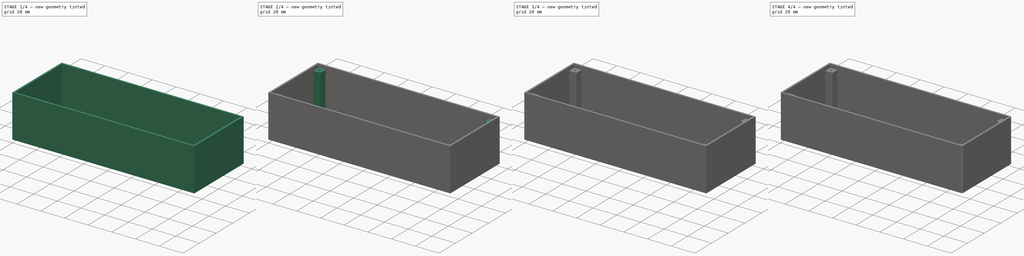
[diagram: build sequence overview — one tinted view per stage of 4, left to right]
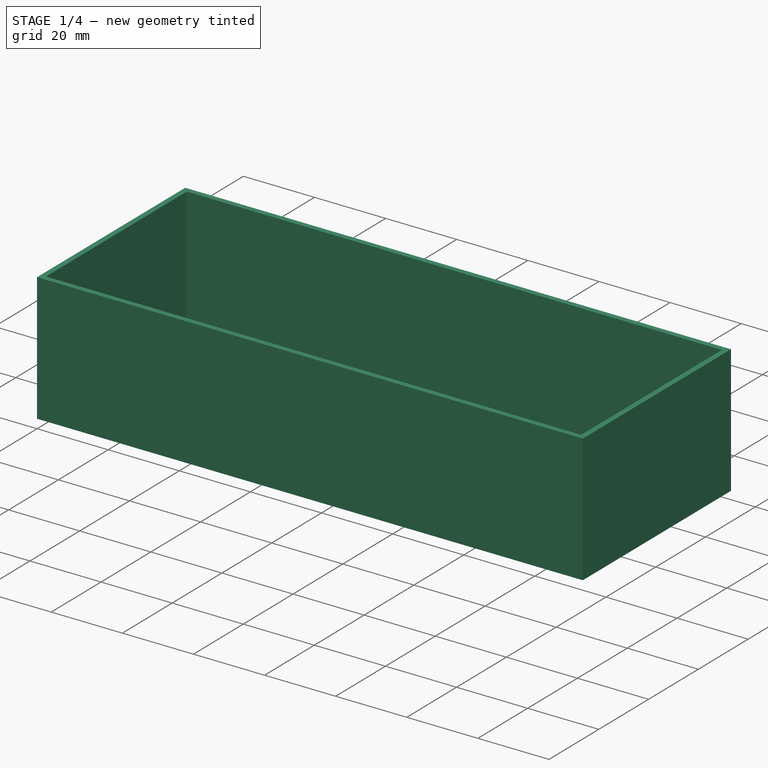
[diagram: stage 1 of 4 — iso view after this stage's code; geometry added in this stage tinted green]
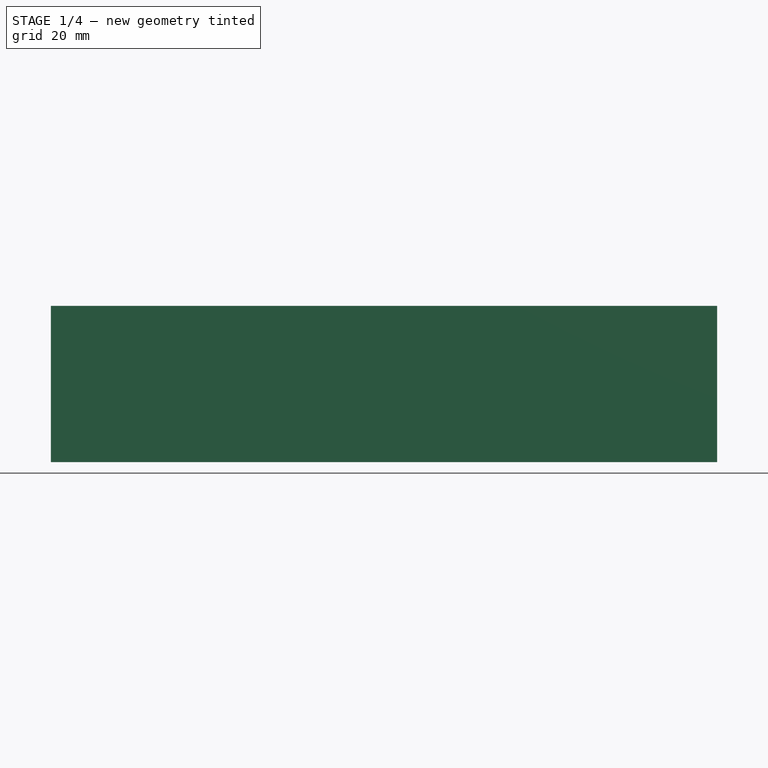
[diagram: stage 1 of 4 — front view after this stage's code; geometry added in this stage tinted green]
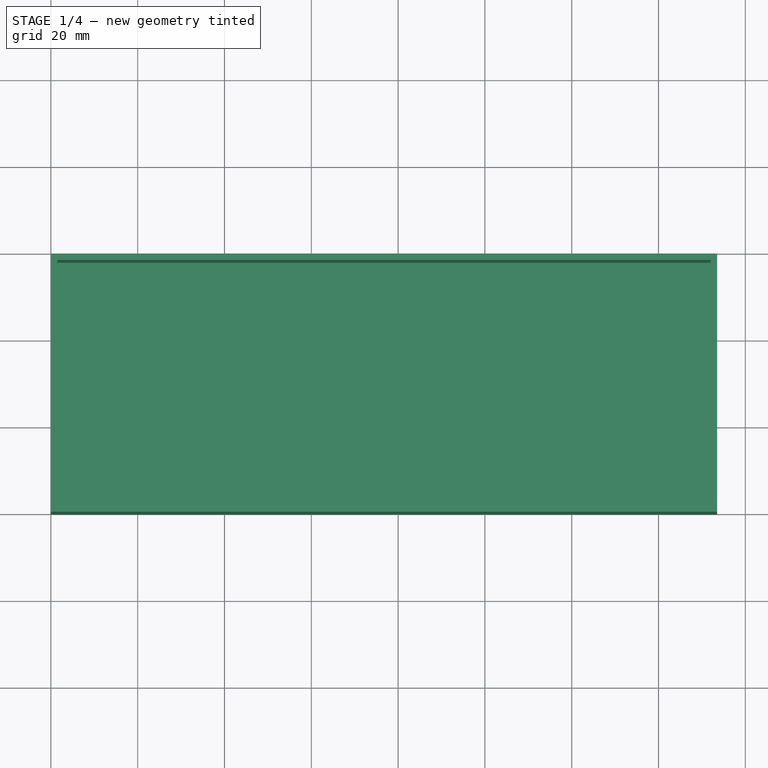
[diagram: stage 1 of 4 — top view after this stage's code; geometry added in this stage tinted green]
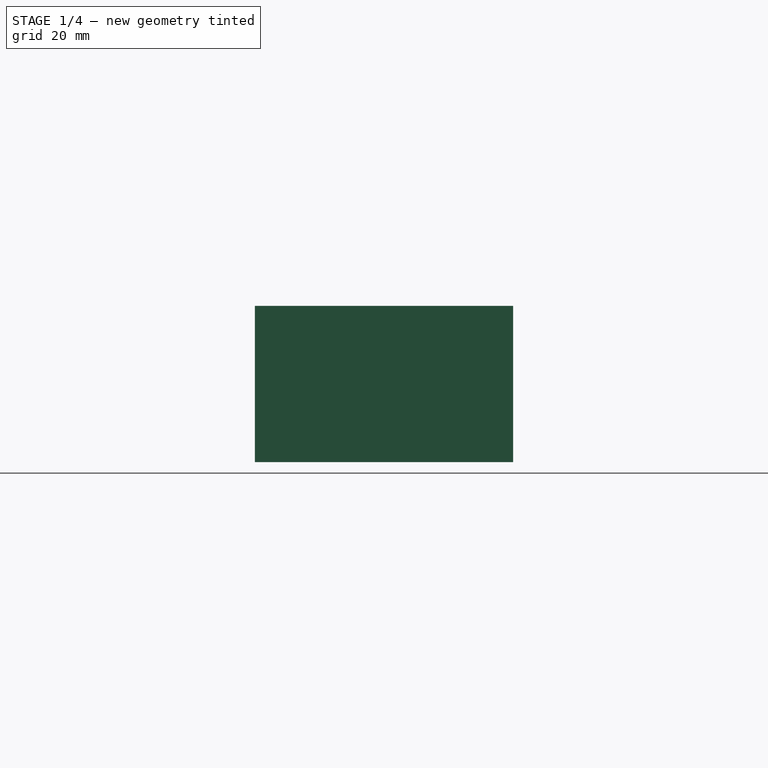
[diagram: stage 1 of 4 — right view after this stage's code; geometry added in this stage tinted green]
FCSTD DOCUMENT  (FreeCAD 0.21R33668 +26 (Git))
Label: Gehaeuse-V02
License: All rights reserved
LicenseURL: https://en.wikipedia.org/wiki/All_rights_reserved
objects: Sketcher::SketchObject×8, PartDesign::Pad×4, PartDesign::Pocket×4, PartDesign::Fillet×1, PartDesign::Body×1
note: 27 computed .brp shape members not serialized (recipe doc carries the construction recipe); baked Part::Feature solids carry a one-line shape summary decoded from their .brp

FEATURE [Sketcher::SketchObject] Sketch
  FullyConstrained = true
  MapMode = 5
  Support = -> [XY_Plane]
  sketch-geometry (4):
    g0: LineSegment StartX=0 StartY=0 StartZ=0 EndX=153.5 EndY=0 EndZ=0
    g1: LineSegment StartX=153.5 StartY=0 StartZ=0 EndX=153.5 EndY=59.5 EndZ=0
    g2: LineSegment StartX=153.5 StartY=59.5 StartZ=0 EndX=0 EndY=59.5 EndZ=0
    g3: LineSegment StartX=0 StartY=59.5 StartZ=0 EndX=0 EndY=0 EndZ=0
  constraints (11):
    c: Coincident(g0,g1)
    c: Coincident(g1,g2)
    c: Coincident(g2,g3)
    c: Coincident(g3,g0)
    c: Horizontal(g0)
    c: Horizontal(g2)
    c: Vertical(g1)
    c: Vertical(g3)
    c: Coincident(g0,g-1)
    c: DistanceX(g2,g2) = 153.5
    c: DistanceY(g3,g3) = 59.5
FEATURE [PartDesign::Pad] Pad
  Direction = (0,0,1)
  Length = 1
  Length2 = 10
  Profile = -> Sketch
  ReferenceAxis = -> Sketch [N_Axis]
  Type = 0
FEATURE [Sketcher::SketchObject] Sketch001
  ExternalGeometry = -> [Pad]
  FullyConstrained = true
  MapMode = 5
  Placement = pos=(0,0,1) rot=(0,0,1;0rad)
  Support = -> [Pad]
  sketch-geometry (8):
    g0: LineSegment StartX=1.5 StartY=58 StartZ=0 EndX=152 EndY=58 EndZ=0
    g1: LineSegment StartX=152 StartY=58 StartZ=0 EndX=152 EndY=1.5 EndZ=0
    g2: LineSegment StartX=152 StartY=1.5 StartZ=0 EndX=1.5 EndY=1.5 EndZ=0
    g3: LineSegment StartX=1.5 StartY=1.5 StartZ=0 EndX=1.5 EndY=58 EndZ=0
    g4: LineSegment StartX=0 StartY=59.5 StartZ=0 EndX=153.5 EndY=59.5 EndZ=0
    g5: LineSegment StartX=153.5 StartY=59.5 StartZ=0 EndX=153.5 EndY=0 EndZ=0
    g6: LineSegment StartX=153.5 StartY=0 StartZ=0 EndX=0 EndY=0 EndZ=0
    g7: LineSegment StartX=0 StartY=0 StartZ=0 EndX=0 EndY=59.5 EndZ=0
  constraints (22):
    c: Coincident(g0,g1)
    c: Coincident(g1,g2)
    c: Coincident(g2,g3)
    c: Coincident(g3,g0)
    c: Horizontal(g0)
    c: Horizontal(g2)
    c: Vertical(g1)
    c: Vertical(g3)
    c: DistanceY(g0,g-3) = 1.5
    c: DistanceX(g-3,g0) = 1.5
    c: DistanceY(g-4,g1) = 1.5
    c: DistanceX(g1,g-4) = 1.5
    c: Coincident(g4,g5)
    c: Coincident(g5,g6)
    c: Coincident(g6,g7)
    c: Coincident(g7,g4)
    c: Horizontal(g4)
    c: Horizontal(g6)
    c: Vertical(g5)
    c: Vertical(g7)
    c: Coincident(g4,g-3)
    c: Coincident(g5,g-4)
FEATURE [PartDesign::Pad] Pad001
  BaseFeature = -> Pad
  Direction = (0,0,1)
  Length = 35
  Length2 = 10
  Profile = -> Sketch001
  ReferenceAxis = -> Sketch001 [N_Axis]
  Type = 0
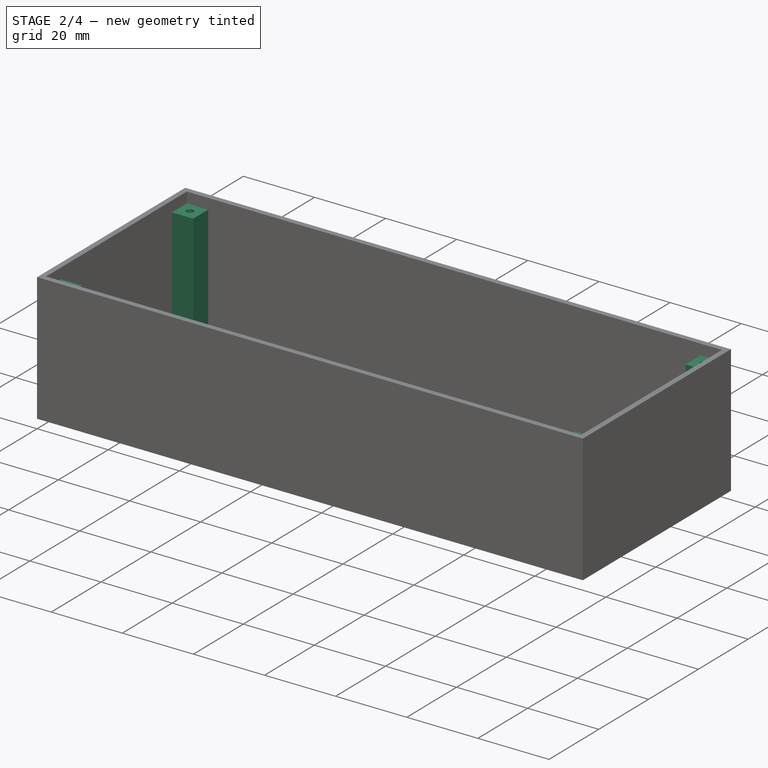
[diagram: stage 2 of 4 — iso view after this stage's code; geometry added in this stage tinted green]
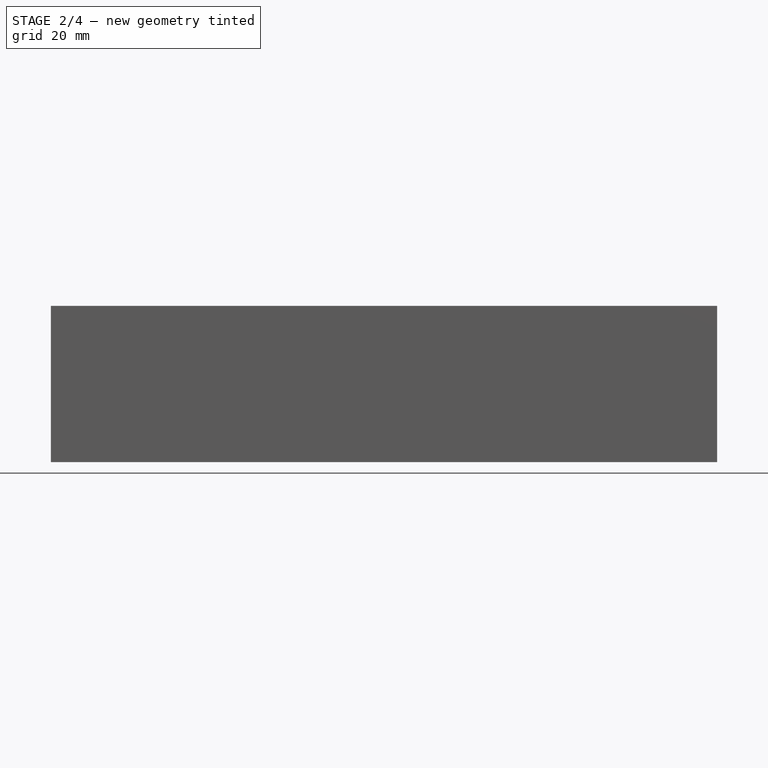
[diagram: stage 2 of 4 — front view after this stage's code; geometry added in this stage tinted green]
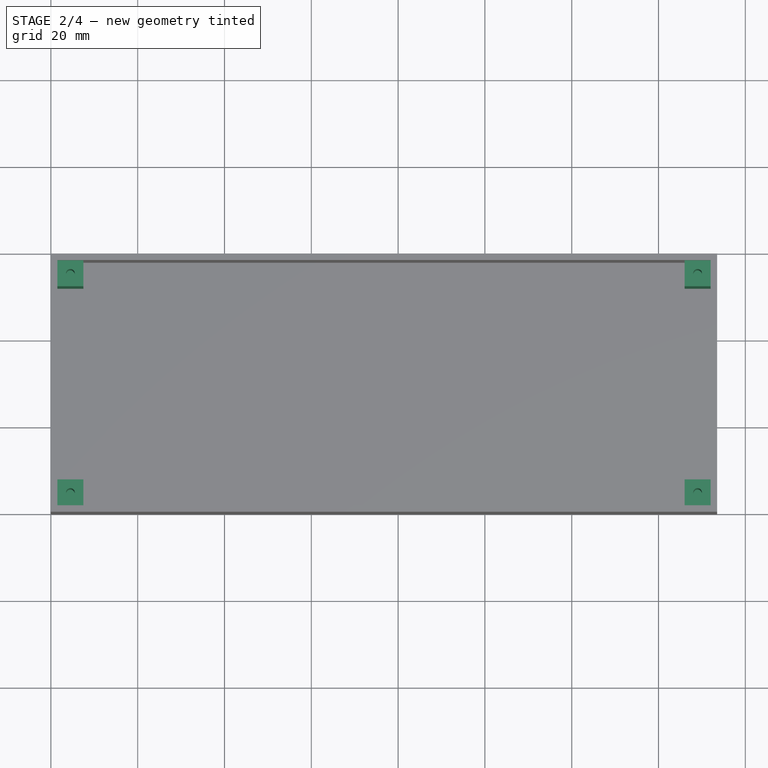
[diagram: stage 2 of 4 — top view after this stage's code; geometry added in this stage tinted green]
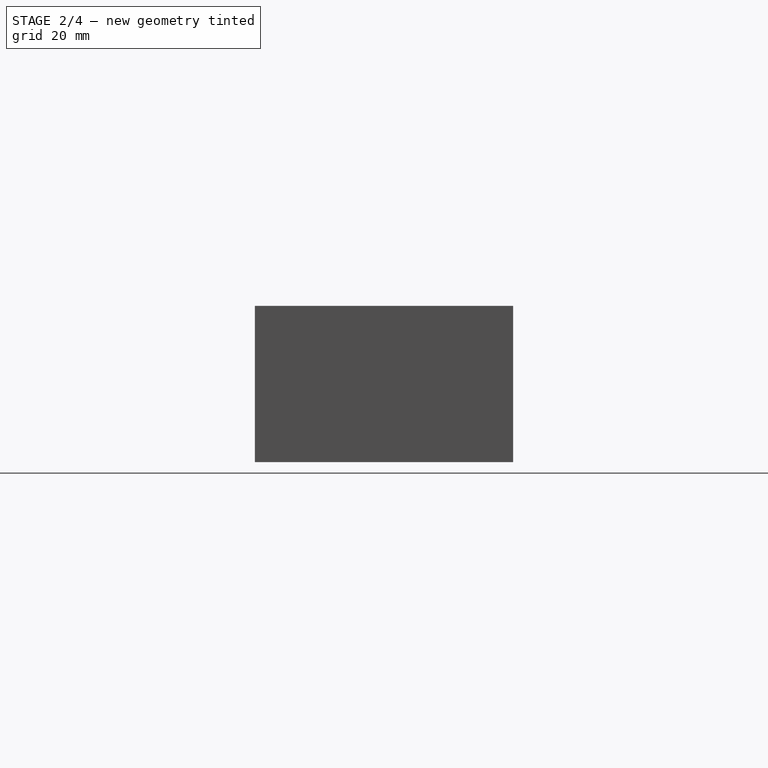
[diagram: stage 2 of 4 — right view after this stage's code; geometry added in this stage tinted green]
FEATURE [Sketcher::SketchObject] Sketch002
  ExternalGeometry = -> [Pad001]
  FullyConstrained = true
  MapMode = 5
  Placement = pos=(0,0,1) rot=(0,0,1;0rad)
  Support = -> [Pad001]
  sketch-geometry (16):
    g0: LineSegment StartX=1.5 StartY=58 StartZ=0 EndX=7.5 EndY=58 EndZ=0
    g1: LineSegment StartX=7.5 StartY=58 StartZ=0 EndX=7.5 EndY=52 EndZ=0
    g2: LineSegment StartX=7.5 StartY=52 StartZ=0 EndX=1.5 EndY=52 EndZ=0
    g3: LineSegment StartX=1.5 StartY=52 StartZ=0 EndX=1.5 EndY=58 EndZ=0
    g4: LineSegment StartX=152 StartY=58 StartZ=0 EndX=146 EndY=58 EndZ=0
    g5: LineSegment StartX=146 StartY=58 StartZ=0 EndX=146 EndY=52 EndZ=0
    g6: LineSegment StartX=146 StartY=52 StartZ=0 EndX=152 EndY=52 EndZ=0
    g7: LineSegment StartX=152 StartY=52 StartZ=0 EndX=152 EndY=58 EndZ=0
    g8: LineSegment StartX=152 StartY=1.5 StartZ=0 EndX=146 EndY=1.5 EndZ=0
    g9: LineSegment StartX=146 StartY=1.5 StartZ=0 EndX=146 EndY=7.5 EndZ=0
    g10: LineSegment StartX=146 StartY=7.5 StartZ=0 EndX=152 EndY=7.5 EndZ=0
    g11: LineSegment StartX=152 StartY=7.5 StartZ=0 EndX=152 EndY=1.5 EndZ=0
    g12: LineSegment StartX=1.5 StartY=1.5 StartZ=0 EndX=7.5 EndY=1.5 EndZ=0
    g13: LineSegment StartX=7.5 StartY=1.5 StartZ=0 EndX=7.5 EndY=7.5 EndZ=0
    g14: LineSegment StartX=7.5 StartY=7.5 StartZ=0 EndX=1.5 EndY=7.5 EndZ=0
    g15: LineSegment StartX=1.5 StartY=7.5 StartZ=0 EndX=1.5 EndY=1.5 EndZ=0
  constraints (44):
    c: Coincident(g0,g1)
    c: Coincident(g1,g2)
    c: Coincident(g2,g3)
    c: Coincident(g3,g0)
    c: Horizontal(g0)
    c: Horizontal(g2)
    c: Vertical(g1)
    c: Vertical(g3)
    c: Coincident(g0,g-3)
    c: Coincident(g4,g5)
    c: Coincident(g5,g6)
    c: Coincident(g6,g7)
    c: Coincident(g7,g4)
    c: Horizontal(g4)
    c: Horizontal(g6)
    c: Vertical(g5)
    c: Vertical(g7)
    c: Coincident(g4,g-4)
    c: Coincident(g8,g9)
    c: Coincident(g9,g10)
    c: Coincident(g10,g11)
    c: Coincident(g11,g8)
    c: Horizontal(g8)
    c: Horizontal(g10)
    c: Vertical(g9)
    c: Vertical(g11)
    c: Coincident(g8,g-4)
    c: Coincident(g12,g13)
    c: Coincident(g13,g14)
    c: Coincident(g14,g15)
    c: Coincident(g15,g12)
    c: Horizontal(g12)
    c: Horizontal(g14)
    c: Vertical(g13)
    c: Vertical(g15)
    c: Coincident(g12,g-3)
    c: Equal(g2,g1)
    c: Equal(g1,g14)
    c: Equal(g14,g13)
    c: Equal(g13,g9)
    c: Equal(g9,g10)
    c: Equal(g10,g6)
    c: Equal(g6,g5)
    c: DistanceX(g2,g2) = 6
FEATURE [PartDesign::Pad] Pad002
  BaseFeature = -> Pad001
  Direction = (0,0,1)
  Length = 32
  Length2 = 10
  Profile = -> Sketch002
  ReferenceAxis = -> Sketch002 [N_Axis]
  Type = 0
FEATURE [Sketcher::SketchObject] Sketch003
  ExternalGeometry = -> [Pad002]
  FullyConstrained = true
  MapMode = 5
  Placement = pos=(0,0,33) rot=(0,0,1;0rad)
  Support = -> [Pad002]
  sketch-geometry (12):
    g0: Circle CenterX=4.5 CenterY=55 CenterZ=0 NormalX=0 NormalY=0 NormalZ=1 AngleXU=0 Radius=1
    g1: Circle CenterX=4.5 CenterY=4.5 CenterZ=0 NormalX=0 NormalY=0 NormalZ=1 AngleXU=0 Radius=1
    g2: Circle CenterX=149 CenterY=4.5 CenterZ=0 NormalX=0 NormalY=0 NormalZ=1 AngleXU=0 Radius=1
    g3: Circle CenterX=149 CenterY=55 CenterZ=0 NormalX=0 NormalY=0 NormalZ=1 AngleXU=0 Radius=1
    g4: LineSegment StartX=4.5 StartY=55 StartZ=0 EndX=1.5 EndY=55 EndZ=0
    g5: LineSegment StartX=4.5 StartY=55 StartZ=0 EndX=4.5 EndY=58 EndZ=0
    g6: LineSegment StartX=149 StartY=55 StartZ=0 EndX=149 EndY=58 EndZ=0
    g7: LineSegment StartX=149 StartY=55 StartZ=0 EndX=152 EndY=55 EndZ=0
    g8: LineSegment StartX=149 StartY=4.5 StartZ=0 EndX=149 EndY=1.5 EndZ=0
    g9: LineSegment StartX=149 StartY=4.5 StartZ=0 EndX=152 EndY=4.5 EndZ=0
    g10: LineSegment StartX=4.5 StartY=4.5 StartZ=0 EndX=4.5 EndY=1.5 EndZ=0
    g11: LineSegment StartX=4.5 StartY=4.5 StartZ=0 EndX=1.5 EndY=4.5 EndZ=0
  constraints (36):
    c: Equal(g3,g0)
    c: Equal(g0,g1)
    c: Equal(g1,g2)
    c: Diameter(g0) = 2
    c: Coincident(g4,g0)
    c: PointOnObject(g4,g-3)
    c: Horizontal(g4)
    c: Coincident(g5,g0)
    c: PointOnObject(g5,g-4)
    c: Vertical(g5)
    c: Coincident(g6,g3)
    c: PointOnObject(g6,g-4)
    c: Vertical(g6)
    c: Coincident(g7,g3)
    c: PointOnObject(g7,g-5)
    c: Horizontal(g7)
    c: Coincident(g8,g2)
    c: PointOnObject(g8,g-6)
    c: Vertical(g8)
    c: Coincident(g9,g2)
    c: PointOnObject(g9,g-5)
    c: Horizontal(g9)
    c: Coincident(g10,g1)
    c: PointOnObject(g10,g-6)
    c: Vertical(g10)
    c: Coincident(g11,g1)
    c: PointOnObject(g11,g-3)
    c: Horizontal(g11)
    c: Equal(g4,g5)
    c: Equal(g5,g10)
    c: Equal(g10,g11)
    c: Equal(g11,g8)
    c: Equal(g8,g9)
    c: Equal(g9,g7)
    c: Equal(g7,g6)
    c: DistanceX(g4,g4) = 3
FEATURE [PartDesign::Pocket] Pocket
  BaseFeature = -> Pad002
  Direction = (0,0,-1)
  Length = 20
  Length2 = 5
  Profile = -> Sketch003
  ReferenceAxis = -> Sketch003 [N_Axis]
  Type = 0
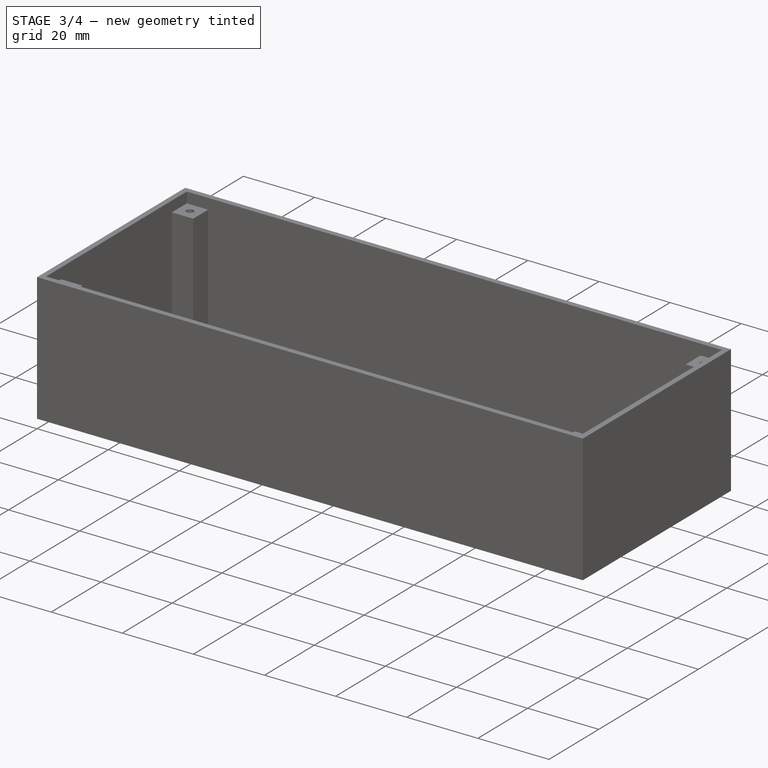
[diagram: stage 3 of 4 — iso view after this stage's code; geometry added in this stage tinted green]
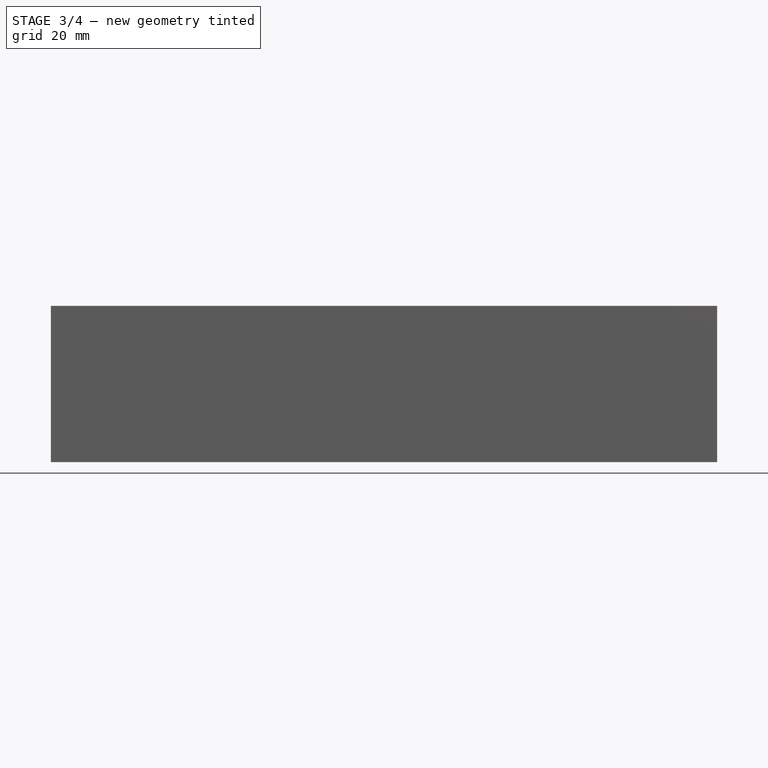
[diagram: stage 3 of 4 — front view after this stage's code; geometry added in this stage tinted green]
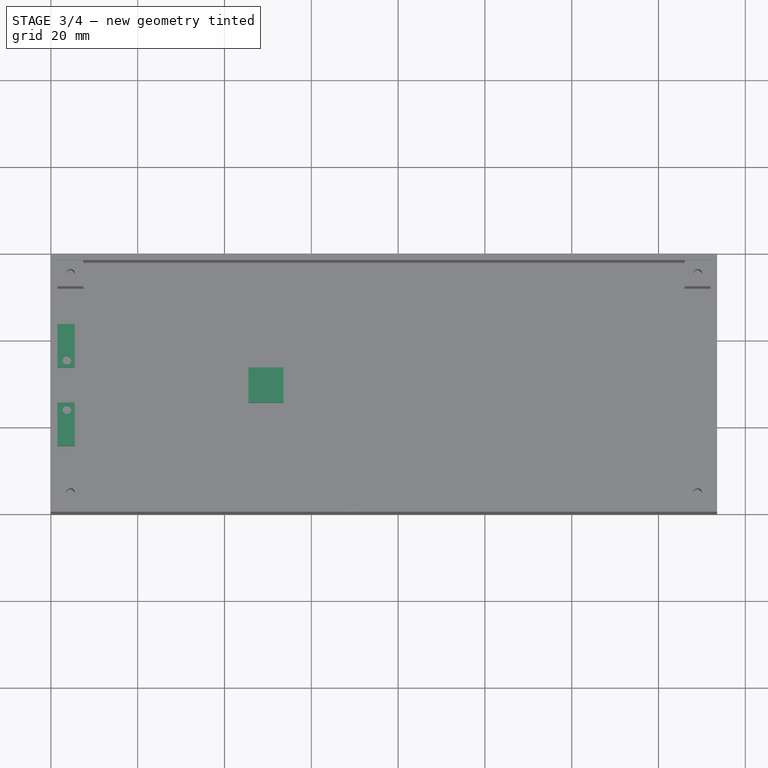
[diagram: stage 3 of 4 — top view after this stage's code; geometry added in this stage tinted green]
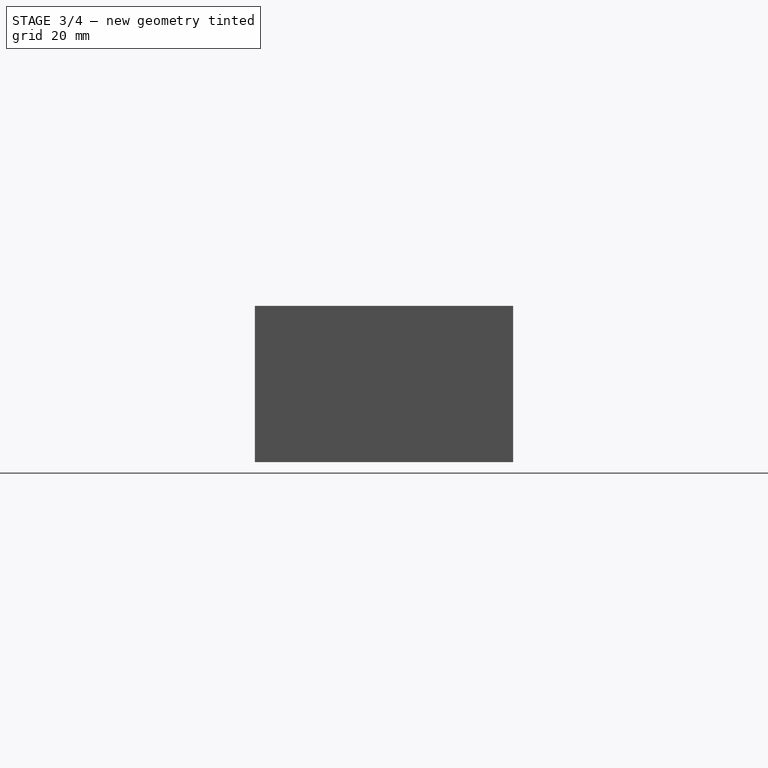
[diagram: stage 3 of 4 — right view after this stage's code; geometry added in this stage tinted green]
FEATURE [Sketcher::SketchObject] Sketch004
  ExternalGeometry = -> [Pocket]
  FullyConstrained = true
  MapMode = 5
  Placement = pos=(0,0,1) rot=(0,0,1;0rad)
  Support = -> [Pocket]
  sketch-geometry (14):
    g0: LineSegment StartX=1.5 StartY=43.8 StartZ=0 EndX=5.5 EndY=43.8 EndZ=0
    g1: LineSegment StartX=5.5 StartY=43.8 StartZ=0 EndX=5.5 EndY=33.8 EndZ=0
    g2: LineSegment StartX=5.5 StartY=33.8 StartZ=0 EndX=1.5 EndY=33.8 EndZ=0
    g3: LineSegment StartX=1.5 StartY=33.8 StartZ=0 EndX=1.5 EndY=43.8 EndZ=0
    g4: LineSegment StartX=1.5 StartY=15.7 StartZ=0 EndX=5.5 EndY=15.7 EndZ=0
    g5: LineSegment StartX=5.5 StartY=15.7 StartZ=0 EndX=5.5 EndY=25.7 EndZ=0
    g6: LineSegment StartX=5.5 StartY=25.7 StartZ=0 EndX=1.5 EndY=25.7 EndZ=0
    g7: LineSegment StartX=1.5 StartY=25.7 StartZ=0 EndX=1.5 EndY=15.7 EndZ=0
    g8: LineSegment StartX=5.5 StartY=43.8 StartZ=0 EndX=5.5 EndY=52 EndZ=0
    g9: LineSegment StartX=5.5 StartY=15.7 StartZ=0 EndX=5.5 EndY=7.5 EndZ=0
    g10: LineSegment StartX=45.5 StartY=33.8 StartZ=0 EndX=53.6 EndY=33.8 EndZ=0
    g11: LineSegment StartX=53.6 StartY=33.8 StartZ=0 EndX=53.6 EndY=25.7 EndZ=0
    g12: LineSegment StartX=53.6 StartY=25.7 StartZ=0 EndX=45.5 EndY=25.7 EndZ=0
    g13: LineSegment StartX=45.5 StartY=25.7 StartZ=0 EndX=45.5 EndY=33.8 EndZ=0
  constraints (42):
    c: Coincident(g0,g1)
    c: Coincident(g1,g2)
    c: Coincident(g2,g3)
    c: Coincident(g3,g0)
    c: Horizontal(g0)
    c: Horizontal(g2)
    c: Vertical(g1)
    c: Vertical(g3)
    c: PointOnObject(g0,g-3)
    c: Coincident(g4,g5)
    c: Coincident(g5,g6)
    c: Coincident(g6,g7)
    c: Coincident(g7,g4)
    c: Horizontal(g4)
    c: Horizontal(g6)
    c: Vertical(g5)
    c: Vertical(g7)
    c: PointOnObject(g4,g-3)
    c: DistanceY(g5,g1) = 8.1
    c: Equal(g6,g2)
    c: DistanceX(g0,g0) = 4
    c: Equal(g1,g5)
    c: DistanceY(g1,g1) = 10
    c: Coincident(g8,g0)
    c: PointOnObject(g8,g-4)
    c: Vertical(g8)
    c: Coincident(g9,g4)
    c: PointOnObject(g9,g-5)
    c: Vertical(g9)
    c: Equal(g8,g9)
    c: Coincident(g10,g11)
    c: Coincident(g11,g12)
    c: Coincident(g12,g13)
    c: Coincident(g13,g10)
    c: Horizontal(g10)
    c: Horizontal(g12)
    c: Vertical(g11)
    c: Vertical(g13)
    c: Horizontal(g1,g10)
    c: Horizontal(g5,g12)
    c: Equal(g13,g10)
    c: DistanceX(g1,g10) = 40
FEATURE [PartDesign::Pad] Pad003
  BaseFeature = -> Pocket
  Direction = (0,0,1)
  Length = 5
  Length2 = 10
  Profile = -> Sketch004
  ReferenceAxis = -> Sketch004 [N_Axis]
  Type = 0
FEATURE [Sketcher::SketchObject] Sketch005
  ExternalGeometry = -> [Pad003]
  FullyConstrained = true
  MapMode = 5
  Placement = pos=(0,0,6) rot=(0,0,1;0rad)
  Support = -> [Pad003]
  sketch-geometry (6):
    g0: Circle CenterX=3.7 CenterY=35.45 CenterZ=0 NormalX=0 NormalY=0 NormalZ=1 AngleXU=0 Radius=1
    g1: Circle CenterX=3.7 CenterY=24.05 CenterZ=0 NormalX=0 NormalY=0 NormalZ=1 AngleXU=0 Radius=1
    g2: LineSegment StartX=3.7 StartY=35.45 StartZ=0 EndX=1.5 EndY=35.45 EndZ=0
    g3: LineSegment StartX=3.7 StartY=24.05 StartZ=0 EndX=1.5 EndY=24.05 EndZ=0
    g4: LineSegment StartX=3.7 StartY=35.45 StartZ=0 EndX=3.7 EndY=33.8 EndZ=0
    g5: LineSegment StartX=3.7 StartY=24.05 StartZ=0 EndX=3.7 EndY=25.7 EndZ=0
  constraints (18):
    c: Equal(g0,g1)
    c: Diameter(g0) = 2
    c: Coincident(g2,g0)
    c: PointOnObject(g2,g-7)
    c: Horizontal(g2)
    c: Coincident(g3,g1)
    c: PointOnObject(g3,g-7)
    c: Horizontal(g3)
    c: Equal(g2,g3)
    c: DistanceX(g2,g2) = 2.2
    c: DistanceY(g1,g0) = 11.4
    c: Coincident(g4,g0)
    c: PointOnObject(g4,g-4)
    c: Vertical(g4)
    c: Coincident(g5,g1)
    c: PointOnObject(g5,g-5)
    c: Vertical(g5)
    c: Equal(g4,g5)
FEATURE [PartDesign::Pocket] Pocket001
  BaseFeature = -> Pad003
  Direction = (0,0,-1)
  Length = 5
  Length2 = 5
  Profile = -> Sketch005
  ReferenceAxis = -> Sketch005 [N_Axis]
  Type = 0
FEATURE [Sketcher::SketchObject] Sketch006
  ExternalGeometry = -> [Pocket001]
  FullyConstrained = true
  MapMode = 5
  Placement = pos=(0,0,0) rot=(0.57735,-0.57735,-0.57735;2.0944rad)
  Support = -> [Pocket001]
  sketch-geometry (7):
    g0: LineSegment StartX=-34.75 StartY=7 StartZ=0 EndX=-24.75 EndY=7 EndZ=0
    g1: LineSegment StartX=-24.75 StartY=7 StartZ=0 EndX=-24.75 EndY=2 EndZ=0
    g2: LineSegment StartX=-24.75 StartY=2 StartZ=0 EndX=-34.75 EndY=2 EndZ=0
    g3: LineSegment StartX=-34.75 StartY=2 StartZ=0 EndX=-34.75 EndY=7 EndZ=0
    g4: LineSegment StartX=-24.75 StartY=2 StartZ=0 EndX=-24.75 EndY=1 EndZ=0
    g5: LineSegment StartX=-24.75 StartY=2 StartZ=0 EndX=0 EndY=2 EndZ=0
    g6: LineSegment StartX=-34.75 StartY=2 StartZ=0 EndX=-59.5 EndY=2 EndZ=0
  constraints (21):
    c: Coincident(g0,g1)
    c: Coincident(g1,g2)
    c: Coincident(g2,g3)
    c: Coincident(g3,g0)
    c: Horizontal(g0)
    c: Horizontal(g2)
    c: Vertical(g1)
    c: Vertical(g3)
    c: Coincident(g4,g1)
    c: PointOnObject(g4,g-5)
    c: Vertical(g4)
    c: DistanceY(g4,g4) = 1
    c: Coincident(g5,g1)
    c: PointOnObject(g5,g-4)
    c: Horizontal(g5)
    c: Coincident(g6,g2)
    c: PointOnObject(g6,g-3)
    c: Horizontal(g6)
    c: Equal(g6,g5)
    c: DistanceY(g1,g1) = 5
    c: DistanceX(g0,g0) = 10
FEATURE [PartDesign::Pocket] Pocket002
  BaseFeature = -> Pocket001
  Direction = (1,0,0)
  Length = 1.5
  Length2 = 5
  Profile = -> Sketch006
  ReferenceAxis = -> Sketch006 [N_Axis]
  Type = 0
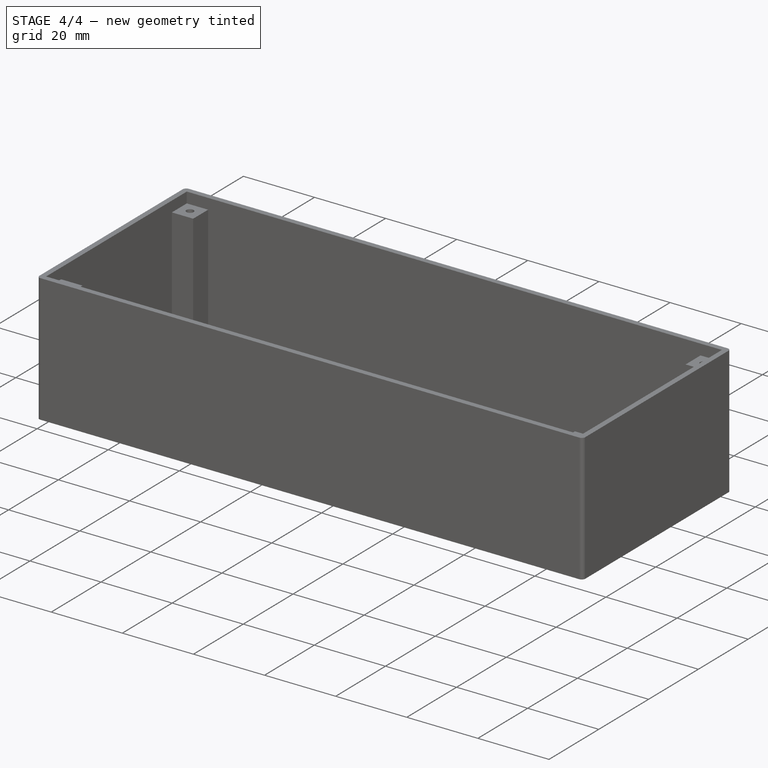
[diagram: stage 4 of 4 — iso view after this stage's code; geometry added in this stage tinted green]
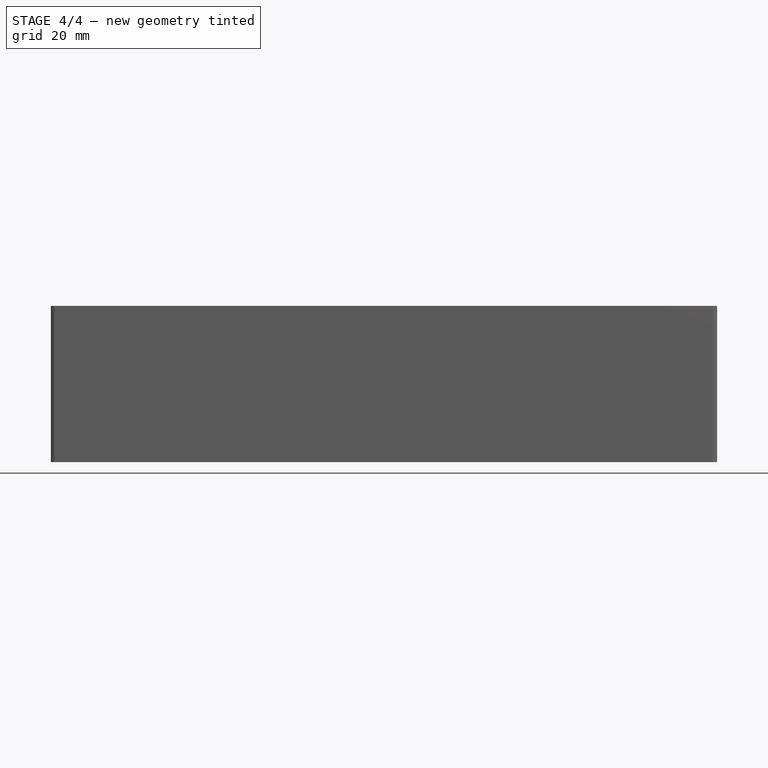
[diagram: stage 4 of 4 — front view after this stage's code; geometry added in this stage tinted green]
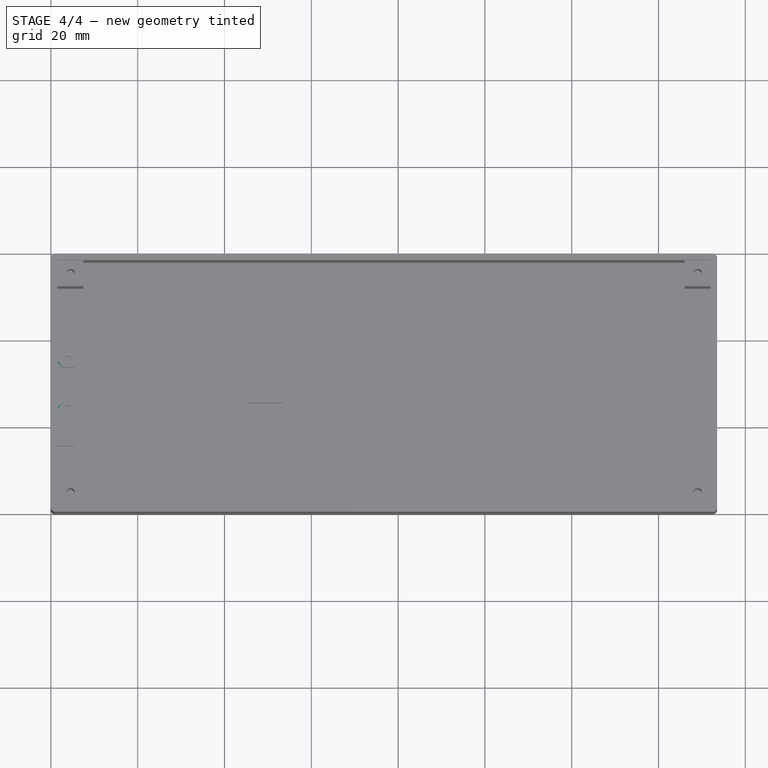
[diagram: stage 4 of 4 — top view after this stage's code; geometry added in this stage tinted green]
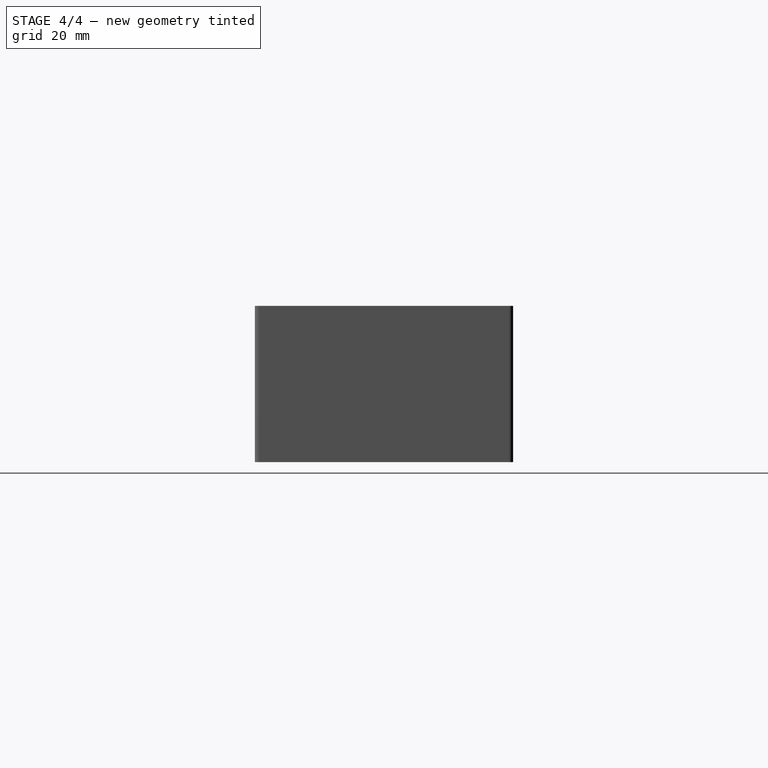
[diagram: stage 4 of 4 — right view after this stage's code; geometry added in this stage tinted green]
FEATURE [PartDesign::Fillet] Fillet
  Base = -> Pocket002 [Edge12,Edge22,Edge17,Edge13]
  BaseFeature = -> Pocket002
  Radius = 1
  SupportTransform = false
  UseAllEdges = false
FEATURE [Sketcher::SketchObject] Sketch007
  ExternalGeometry = -> [Fillet]
  FullyConstrained = true
  MapMode = 5
  Placement = pos=(0,0,6) rot=(0,0,1;0rad)
  Support = -> [Fillet]
  sketch-geometry (6):
    g0: LineSegment StartX=3 StartY=33.8 StartZ=0 EndX=1.5 EndY=33.8 EndZ=0
    g1: LineSegment StartX=1.5 StartY=33.8 StartZ=0 EndX=1.5 EndY=35.3 EndZ=0
    g2: LineSegment StartX=1.5 StartY=35.3 StartZ=0 EndX=3 EndY=33.8 EndZ=0
    g3: LineSegment StartX=3 StartY=25.7 StartZ=0 EndX=1.5 EndY=24.2 EndZ=0
    g4: LineSegment StartX=1.5 StartY=24.2 StartZ=0 EndX=1.5 EndY=25.7 EndZ=0
    g5: LineSegment StartX=1.5 StartY=25.7 StartZ=0 EndX=3 EndY=25.7 EndZ=0
  constraints (16):
    c: PointOnObject(g0,g-3)
    c: Coincident(g0,g-3)
    c: Coincident(g0,g1)
    c: PointOnObject(g1,g-5)
    c: Coincident(g1,g2)
    c: Coincident(g2,g0)
    c: PointOnObject(g3,g-4)
    c: PointOnObject(g3,g-5)
    c: Coincident(g3,g4)
    c: Coincident(g4,g-4)
    c: Coincident(g4,g5)
    c: Coincident(g5,g3)
    c: Equal(g1,g0)
    c: Equal(g0,g4)
    c: Equal(g4,g5)
    c: DistanceX(g0,g0) = 1.5
FEATURE [PartDesign::Pocket] Pocket003
  BaseFeature = -> Fillet
  Direction = (0,0,-1)
  Length = 4
  Length2 = 5
  Profile = -> Sketch007
  ReferenceAxis = -> Sketch007 [N_Axis]
  Type = 0
FEATURE [PartDesign::Body] Body  label="Körper"
  Group = -> [Sketch,Pad,Sketch001,Pad001,Sketch002,Pad002,Sketch003,Pocket,Sketch004,Pad003,Sketch005,Pocket001,Sketch006,Pocket002,Fillet,Sketch007,Pocket003]
  Origin = -> Origin
  Tip = -> Pocket003
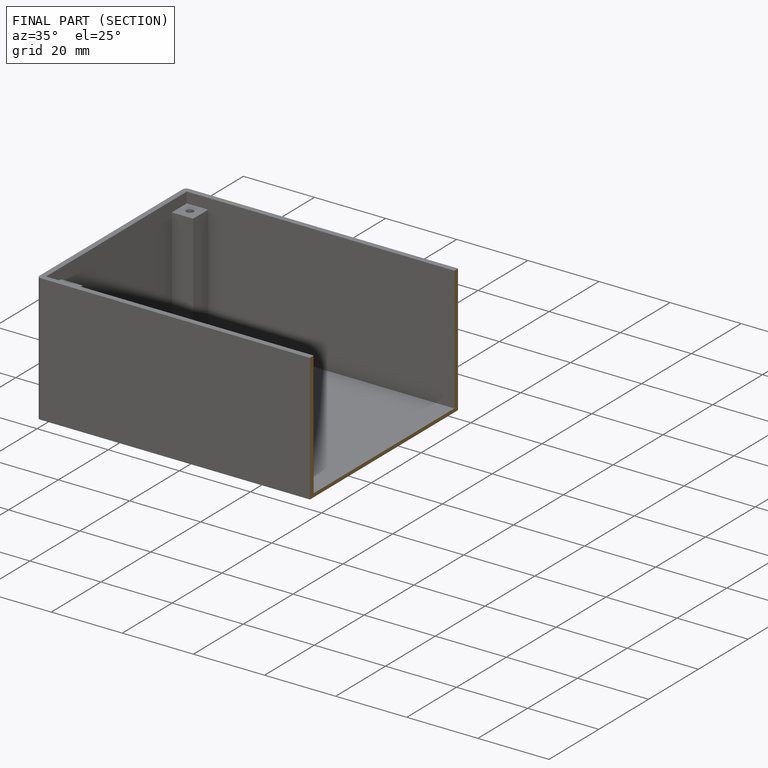
[diagram: finished part — half-section view (interior)]
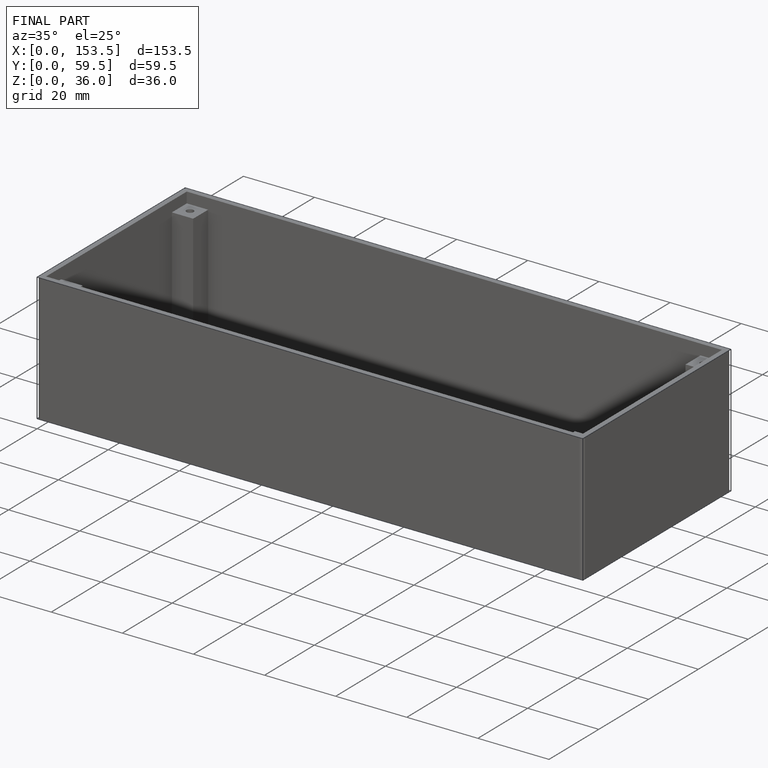
[diagram: finished part — iso view with bounding-box wireframe]
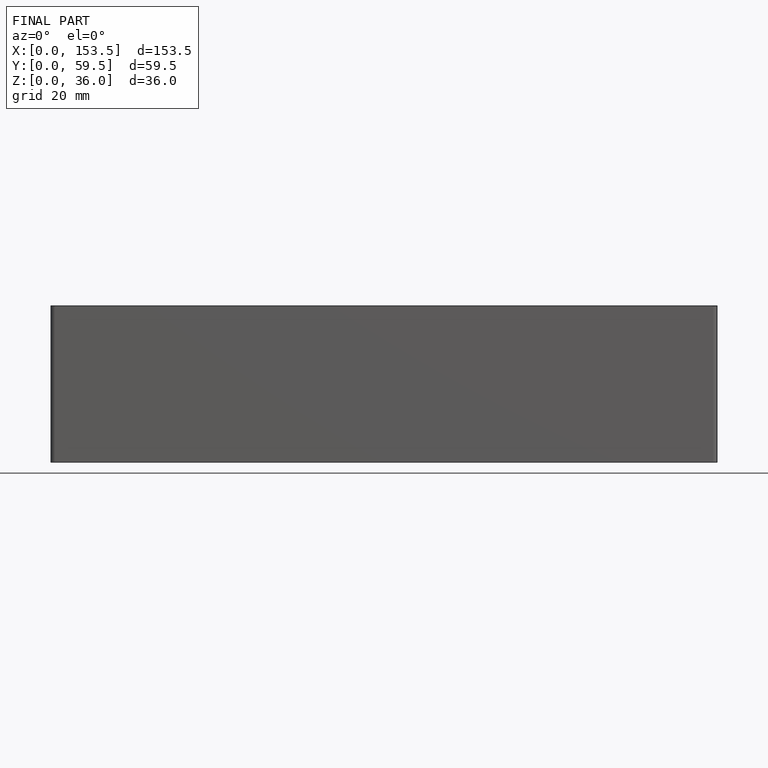
[diagram: finished part — front view with bounding-box wireframe]
